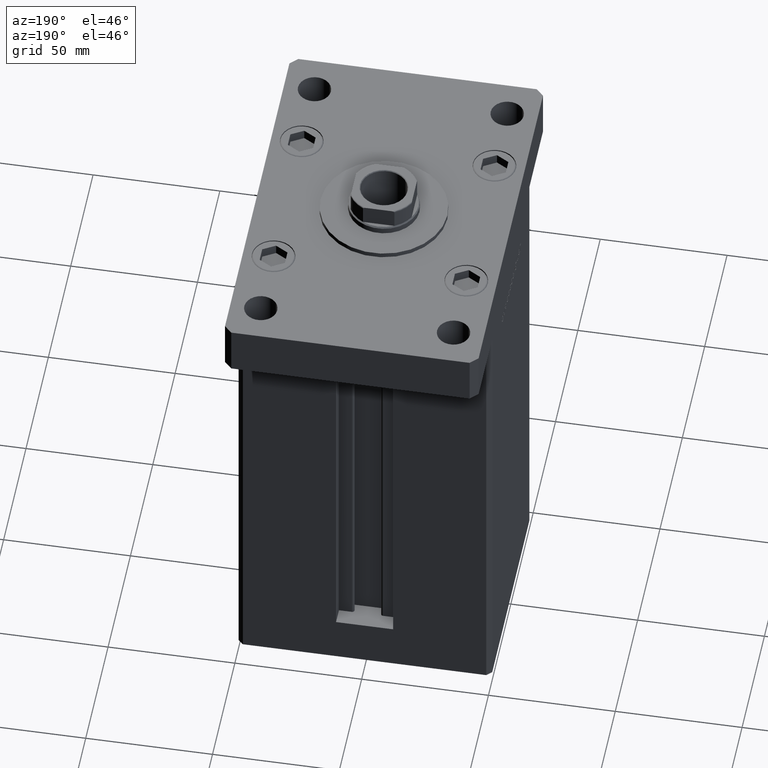
[diagram: clean part render]
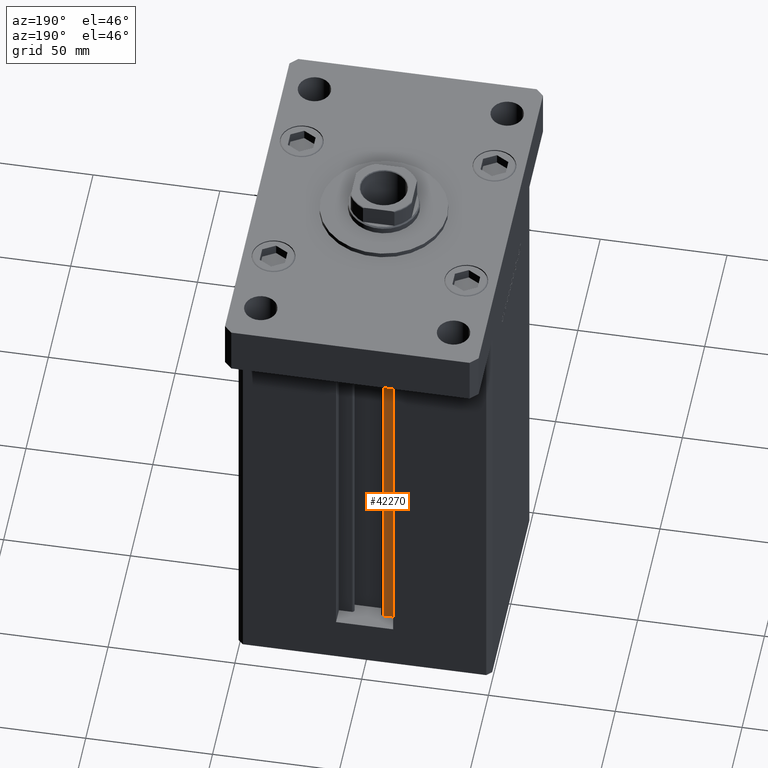
[diagram: same view with one face highlighted and labeled with its STEP entity id]
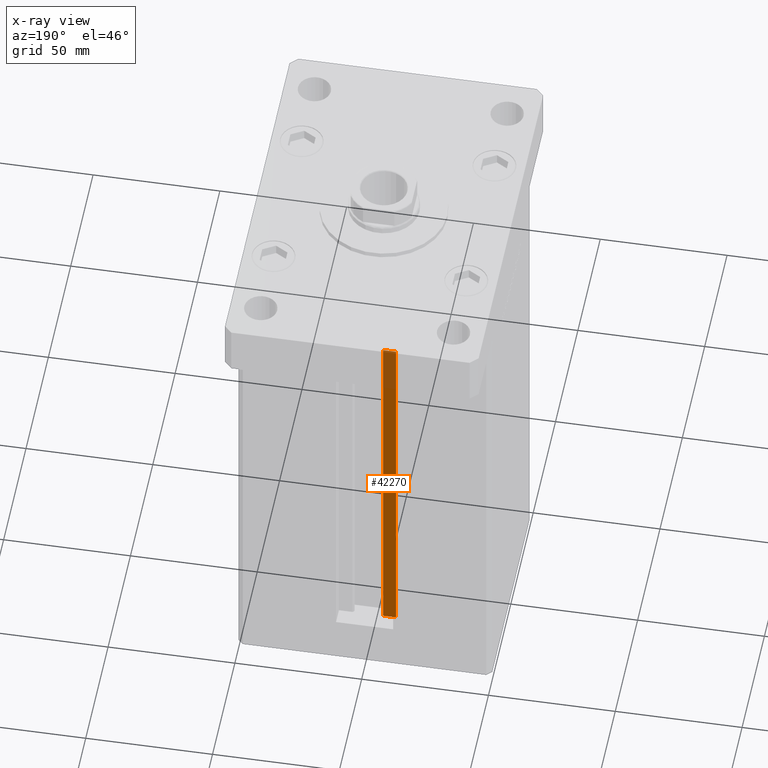
[diagram: x-ray of the same camera — body ghosted, the highlighted face saturated]
A machine part, auxiliary view. The second image highlights one B-rep face of the part: STEP entity #42270.
The next image is the same camera in x-ray: the body ghosted, the highlighted face saturated — about 14% of this face is hidden behind the body in this view.
In plain terms, the highlighted planar face has unit normal (0, -1, 0).
Its self-contained STEP definition (entity closure, byte-faithful):
#593 = VECTOR ( 'NONE', #9858, 1000.000000000000000 ) ;
#1272 = EDGE_CURVE ( 'NONE', #16692, #49837, #8300, .T. ) ;
#1350 = VERTEX_POINT ( 'NONE', #18088 ) ;
#2359 = ORIENTED_EDGE ( 'NONE', *, *, #42551, .F. ) ;
#3794 = CARTESIAN_POINT ( 'NONE',  ( -6.183333333333997928, 36.99999999999999289, 0.000000000000000000 ) ) ;
#5763 = ORIENTED_EDGE ( 'NONE', *, *, #35713, .F. ) ;
#6798 = LINE ( 'NONE', #23431, #11282 ) ;
#7540 = DIRECTION ( 'NONE',  ( 0.000000000000000000, 0.000000000000000000, -1.000000000000000000 ) ) ;
#8300 = LINE ( 'NONE', #21133, #14834 ) ;
#9858 = DIRECTION ( 'NONE',  ( 1.000000000000000000, -0.000000000000000000, -0.000000000000000000 ) ) ;
#10044 = FACE_OUTER_BOUND ( 'NONE', #28535, .T. ) ;
#10654 = ORIENTED_EDGE ( 'NONE', *, *, #22443, .F. ) ;
#11282 = VECTOR ( 'NONE', #40063, 1000.000000000000000 ) ;
#11356 = AXIS2_PLACEMENT_3D ( 'NONE', #35911, #19564, #7540 ) ;
#14834 = VECTOR ( 'NONE', #33099, 1000.000000000000000 ) ;
#15934 = CARTESIAN_POINT ( 'NONE',  ( -11.24999999999999822, 36.99999999999999289, 0.000000000000000000 ) ) ;
#16692 = VERTEX_POINT ( 'NONE', #15934 ) ;
#18088 = CARTESIAN_POINT ( 'NONE',  ( -6.183333333333997928, 36.99999999999999289, 148.5000000000000000 ) ) ;
#18217 = PLANE ( 'NONE',  #11356 ) ;
#19564 = DIRECTION ( 'NONE',  ( 0.000000000000000000, -1.000000000000000000, -0.000000000000000000 ) ) ;
#21133 = CARTESIAN_POINT ( 'NONE',  ( -11.24999999999999822, 36.99999999999999289, 0.000000000000000000 ) ) ;
#22443 = EDGE_CURVE ( 'NONE', #16692, #37726, #52390, .T. ) ;
#23431 = CARTESIAN_POINT ( 'NONE',  ( -6.183333333333997928, 36.99999999999999289, 0.000000000000000000 ) ) ;
#25727 = CARTESIAN_POINT ( 'NONE',  ( -11.24999999999999822, 36.99999999999999289, 148.5000000000000000 ) ) ;
#26142 = VECTOR ( 'NONE', #28208, 1000.000000000000000 ) ;
#28208 = DIRECTION ( 'NONE',  ( -1.000000000000000000, 0.000000000000000000, 0.000000000000000000 ) ) ;
#28535 = EDGE_LOOP ( 'NONE', ( #5763, #10654, #44266, #2359 ) ) ;
#31478 = LINE ( 'NONE', #35841, #26142 ) ;
#33099 = DIRECTION ( 'NONE',  ( -0.000000000000000000, -0.000000000000000000, 1.000000000000000000 ) ) ;
#35713 = EDGE_CURVE ( 'NONE', #37726, #1350, #6798, .T. ) ;
#35841 = CARTESIAN_POINT ( 'NONE',  ( 0.000000000000000000, 36.99999999999999289, 148.5000000000000000 ) ) ;
#35911 = CARTESIAN_POINT ( 'NONE',  ( -6.183333333333997928, 36.99999999999999289, 0.000000000000000000 ) ) ;
#35998 = CARTESIAN_POINT ( 'NONE',  ( -6.183333333333997928, 36.99999999999999289, 0.000000000000000000 ) ) ;
#37726 = VERTEX_POINT ( 'NONE', #3794 ) ;
#40063 = DIRECTION ( 'NONE',  ( -0.000000000000000000, -0.000000000000000000, 1.000000000000000000 ) ) ;
#42270 = ADVANCED_FACE ( 'NONE', ( #10044 ), #18217, .F. ) ;
#42551 = EDGE_CURVE ( 'NONE', #1350, #49837, #31478, .T. ) ;
#44266 = ORIENTED_EDGE ( 'NONE', *, *, #1272, .T. ) ;
#49837 = VERTEX_POINT ( 'NONE', #25727 ) ;
#52390 = LINE ( 'NONE', #35998, #593 ) ;